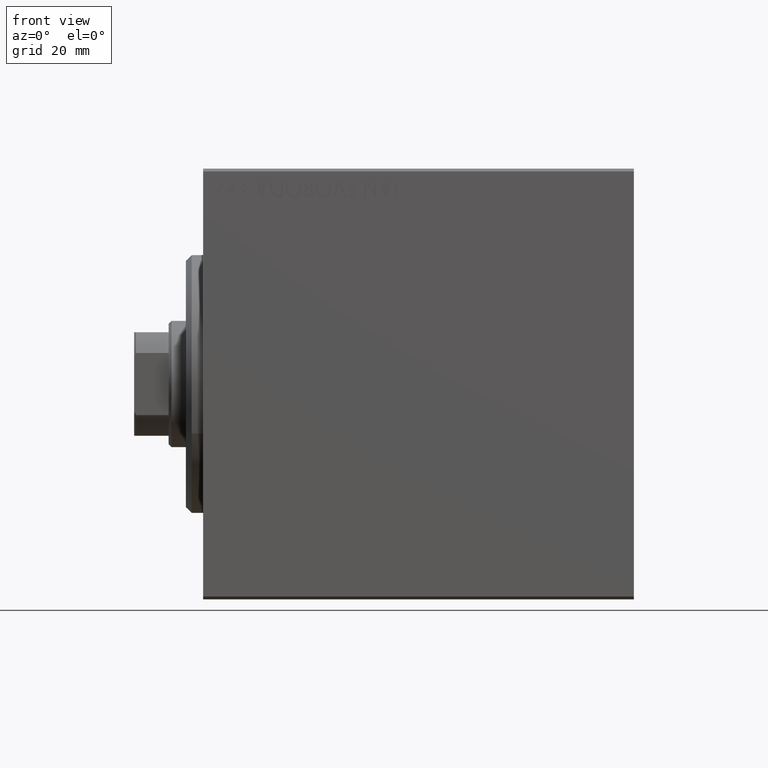
[diagram: clean part render]
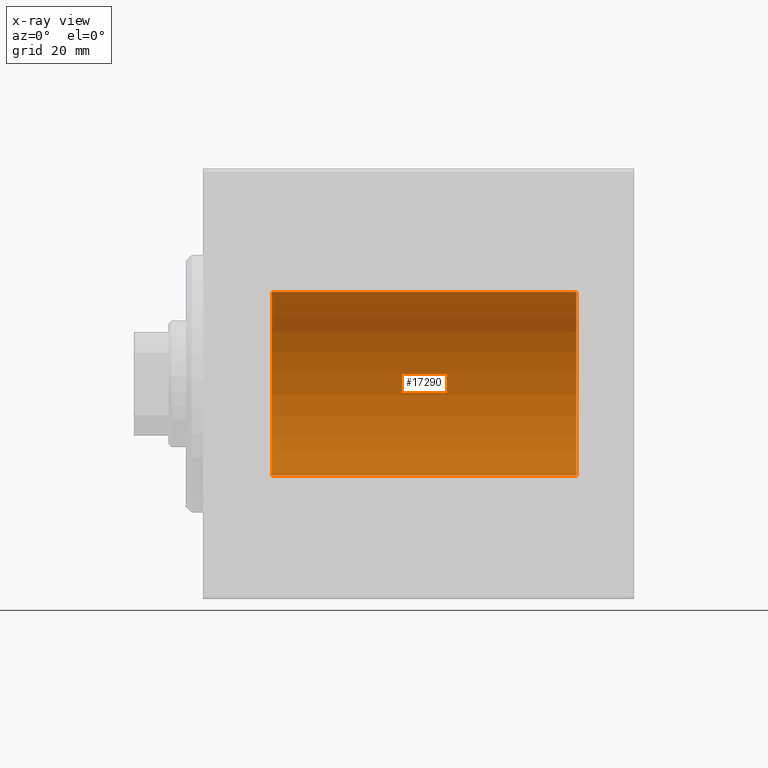
[diagram: x-ray — body ghosted, one internal face saturated and labeled with its STEP entity id]
A machine part, front view, then the same camera in x-ray: the body is ghosted and one INTERNAL B-rep face — a face not visible from any outside direction — is saturated and labeled: STEP entity #17290.
In plain terms, the highlighted cylindrical surface (partial cylindrical patch) has radius 16 mm, axis along (-1, -0, -0).
Its self-contained STEP definition (entity closure, byte-faithful):
#95 = CIRCLE ( 'NONE', #12809, 16.00000000000000000 ) ;
#2794 = DIRECTION ( 'NONE',  ( 0.000000000000000000, 0.000000000000000000, 1.000000000000000000 ) ) ;
#3995 = DIRECTION ( 'NONE',  ( 0.000000000000000000, 0.000000000000000000, 1.000000000000000000 ) ) ;
#5547 = DIRECTION ( 'NONE',  ( -1.000000000000000000, -0.000000000000000000, -0.000000000000000000 ) ) ;
#5695 = CARTESIAN_POINT ( 'NONE',  ( 11.99999999999999645, 0.000000000000000000, 0.000000000000000000 ) ) ;
#7703 = ORIENTED_EDGE ( 'NONE', *, *, #34840, .T. ) ;
#10733 = CARTESIAN_POINT ( 'NONE',  ( 11.99999999999999645, 1.959434878635765131E-15, -16.00000000000000000 ) ) ;
#11425 = LINE ( 'NONE', #42247, #39790 ) ;
#11703 = CIRCLE ( 'NONE', #30694, 16.00000000000000000 ) ;
#12809 = AXIS2_PLACEMENT_3D ( 'NONE', #5695, #19109, #32558 ) ;
#15424 = CARTESIAN_POINT ( 'NONE',  ( 11.99999999999999645, 0.000000000000000000, 16.00000000000000000 ) ) ;
#15652 = ORIENTED_EDGE ( 'NONE', *, *, #42734, .F. ) ;
#17207 = CARTESIAN_POINT ( 'NONE',  ( 65.00000000000000000, 0.000000000000000000, 0.000000000000000000 ) ) ;
#17290 = ADVANCED_FACE ( 'NONE', ( #32748 ), #29879, .F. ) ;
#17527 = VERTEX_POINT ( 'NONE', #32044 ) ;
#18389 = ORIENTED_EDGE ( 'NONE', *, *, #40812, .F. ) ;
#19109 = DIRECTION ( 'NONE',  ( -1.000000000000000000, 0.000000000000000000, 0.000000000000000000 ) ) ;
#19525 = CARTESIAN_POINT ( 'NONE',  ( 65.00000000000000000, 0.000000000000000000, 0.000000000000000000 ) ) ;
#22921 = LINE ( 'NONE', #36371, #26261 ) ;
#26261 = VECTOR ( 'NONE', #5547, 1000.000000000000000 ) ;
#26923 = CARTESIAN_POINT ( 'NONE',  ( 65.00000000000000000, 1.959434878635765131E-15, -16.00000000000000000 ) ) ;
#28314 = VERTEX_POINT ( 'NONE', #26923 ) ;
#28373 = DIRECTION ( 'NONE',  ( -1.000000000000000000, -0.000000000000000000, -0.000000000000000000 ) ) ;
#29113 = EDGE_LOOP ( 'NONE', ( #18389, #15652, #7703, #29540 ) ) ;
#29295 = VERTEX_POINT ( 'NONE', #15424 ) ;
#29540 = ORIENTED_EDGE ( 'NONE', *, *, #30467, .T. ) ;
#29879 = CYLINDRICAL_SURFACE ( 'NONE', #38659, 16.00000000000000000 ) ;
#30467 = EDGE_CURVE ( 'NONE', #29295, #31667, #95, .T. ) ;
#30694 = AXIS2_PLACEMENT_3D ( 'NONE', #17207, #32938, #3995 ) ;
#31667 = VERTEX_POINT ( 'NONE', #10733 ) ;
#32044 = CARTESIAN_POINT ( 'NONE',  ( 65.00000000000000000, 0.000000000000000000, 16.00000000000000000 ) ) ;
#32558 = DIRECTION ( 'NONE',  ( 0.000000000000000000, 0.000000000000000000, 1.000000000000000000 ) ) ;
#32748 = FACE_OUTER_BOUND ( 'NONE', #29113, .T. ) ;
#32938 = DIRECTION ( 'NONE',  ( -1.000000000000000000, 0.000000000000000000, 0.000000000000000000 ) ) ;
#32974 = DIRECTION ( 'NONE',  ( -1.000000000000000000, -0.000000000000000000, -0.000000000000000000 ) ) ;
#34840 = EDGE_CURVE ( 'NONE', #17527, #29295, #22921, .T. ) ;
#36371 = CARTESIAN_POINT ( 'NONE',  ( 65.00000000000000000, 0.000000000000000000, 16.00000000000000000 ) ) ;
#38659 = AXIS2_PLACEMENT_3D ( 'NONE', #19525, #32974, #2794 ) ;
#39790 = VECTOR ( 'NONE', #28373, 1000.000000000000000 ) ;
#40812 = EDGE_CURVE ( 'NONE', #28314, #31667, #11425, .T. ) ;
#42247 = CARTESIAN_POINT ( 'NONE',  ( 65.00000000000000000, 1.959434878635765131E-15, -16.00000000000000000 ) ) ;
#42734 = EDGE_CURVE ( 'NONE', #17527, #28314, #11703, .T. ) ;